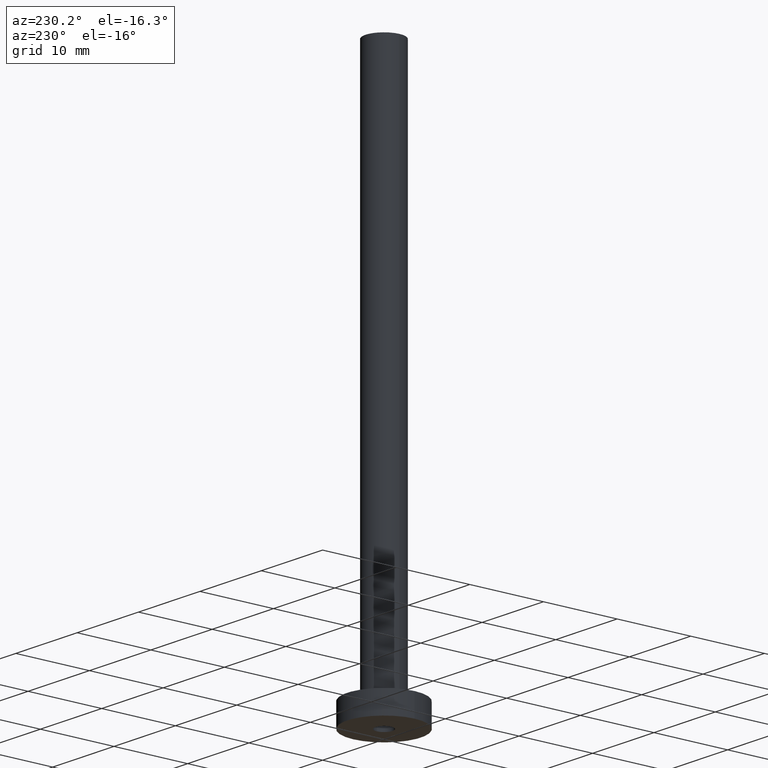
[diagram: clean part render]
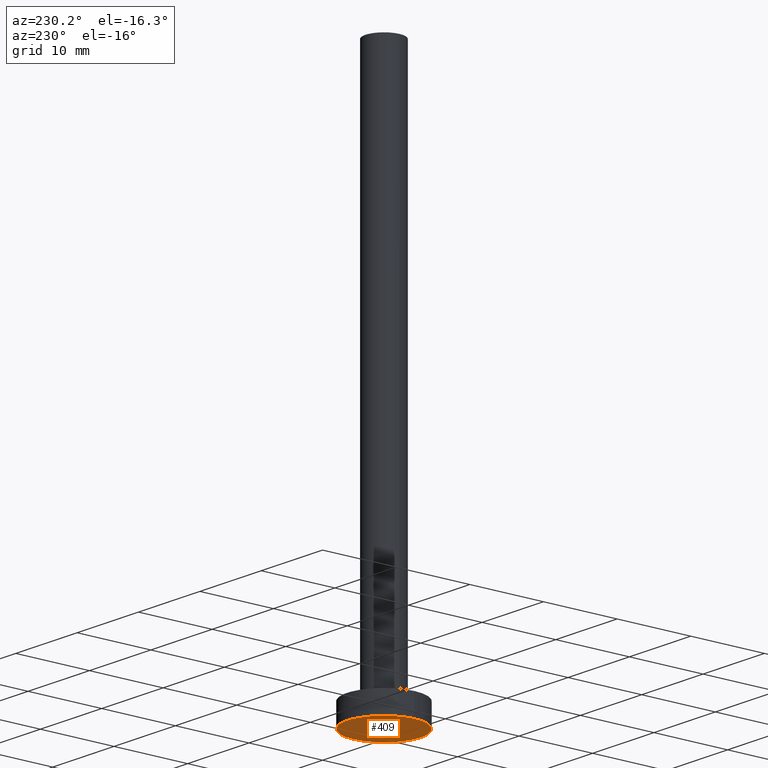
[diagram: same view with one face highlighted and labeled with its STEP entity id]
A machine part, auxiliary view. The second image highlights one B-rep face of the part: STEP entity #409.
In plain terms, the highlighted planar face has unit normal (0, 0, 1).
Its self-contained STEP definition (entity closure, byte-faithful):
#3 = CARTESIAN_POINT ( 'NONE',  ( 0.000000000000000000, 0.000000000000000000, 0.000000000000000000 ) ) ;
#4 = EDGE_CURVE ( 'NONE', #461, #181, #80, .T. ) ;
#10 = DIRECTION ( 'NONE',  ( -0.000000000000000000, -0.000000000000000000, -1.000000000000000000 ) ) ;
#23 = CIRCLE ( 'NONE', #417, 5.000000000000000000 ) ;
#28 = CARTESIAN_POINT ( 'NONE',  ( -1.149999999999999911, 0.000000000000000000, 0.000000000000000000 ) ) ;
#68 = EDGE_CURVE ( 'NONE', #213, #348, #147, .T. ) ;
#72 = AXIS2_PLACEMENT_3D ( 'NONE', #261, #10, #198 ) ;
#80 = CIRCLE ( 'NONE', #332, 5.000000000000000000 ) ;
#82 = ORIENTED_EDGE ( 'NONE', *, *, #431, .F. ) ;
#85 = CARTESIAN_POINT ( 'NONE',  ( -5.000000000000000000, 0.000000000000000000, 0.000000000000000000 ) ) ;
#93 = CARTESIAN_POINT ( 'NONE',  ( 0.000000000000000000, 0.000000000000000000, 0.000000000000000000 ) ) ;
#103 = DIRECTION ( 'NONE',  ( -0.000000000000000000, -0.000000000000000000, -1.000000000000000000 ) ) ;
#112 = ORIENTED_EDGE ( 'NONE', *, *, #341, .F. ) ;
#121 = DIRECTION ( 'NONE',  ( 1.000000000000000000, 0.000000000000000000, -0.000000000000000000 ) ) ;
#132 = CIRCLE ( 'NONE', #72, 1.149999999999999911 ) ;
#141 = CARTESIAN_POINT ( 'NONE',  ( 0.000000000000000000, 0.000000000000000000, 0.000000000000000000 ) ) ;
#147 = CIRCLE ( 'NONE', #299, 1.149999999999999911 ) ;
#156 = CARTESIAN_POINT ( 'NONE',  ( 5.000000000000000000, 6.123233995736766282E-16, 0.000000000000000000 ) ) ;
#181 = VERTEX_POINT ( 'NONE', #156 ) ;
#198 = DIRECTION ( 'NONE',  ( 1.000000000000000000, 0.000000000000000000, 0.000000000000000000 ) ) ;
#213 = VERTEX_POINT ( 'NONE', #439 ) ;
#225 = FACE_OUTER_BOUND ( 'NONE', #315, .T. ) ;
#229 = FACE_BOUND ( 'NONE', #250, .T. ) ;
#230 = PLANE ( 'NONE',  #268 ) ;
#234 = DIRECTION ( 'NONE',  ( 1.000000000000000000, 0.000000000000000000, 0.000000000000000000 ) ) ;
#235 = DIRECTION ( 'NONE',  ( 0.000000000000000000, 0.000000000000000000, 1.000000000000000000 ) ) ;
#242 = DIRECTION ( 'NONE',  ( 1.000000000000000000, 0.000000000000000000, 0.000000000000000000 ) ) ;
#243 = ORIENTED_EDGE ( 'NONE', *, *, #4, .F. ) ;
#250 = EDGE_LOOP ( 'NONE', ( #82, #282 ) ) ;
#261 = CARTESIAN_POINT ( 'NONE',  ( 0.000000000000000000, 0.000000000000000000, 0.000000000000000000 ) ) ;
#268 = AXIS2_PLACEMENT_3D ( 'NONE', #438, #402, #121 ) ;
#282 = ORIENTED_EDGE ( 'NONE', *, *, #68, .F. ) ;
#299 = AXIS2_PLACEMENT_3D ( 'NONE', #3, #103, #242 ) ;
#315 = EDGE_LOOP ( 'NONE', ( #243, #112 ) ) ;
#332 = AXIS2_PLACEMENT_3D ( 'NONE', #141, #344, #424 ) ;
#341 = EDGE_CURVE ( 'NONE', #181, #461, #23, .T. ) ;
#344 = DIRECTION ( 'NONE',  ( 0.000000000000000000, 0.000000000000000000, 1.000000000000000000 ) ) ;
#348 = VERTEX_POINT ( 'NONE', #28 ) ;
#402 = DIRECTION ( 'NONE',  ( 0.000000000000000000, 0.000000000000000000, 1.000000000000000000 ) ) ;
#409 = ADVANCED_FACE ( 'NONE', ( #229, #225 ), #230, .F. ) ;
#417 = AXIS2_PLACEMENT_3D ( 'NONE', #93, #235, #234 ) ;
#424 = DIRECTION ( 'NONE',  ( 1.000000000000000000, 0.000000000000000000, 0.000000000000000000 ) ) ;
#431 = EDGE_CURVE ( 'NONE', #348, #213, #132, .T. ) ;
#438 = CARTESIAN_POINT ( 'NONE',  ( 0.000000000000000000, 0.000000000000000000, 0.000000000000000000 ) ) ;
#439 = CARTESIAN_POINT ( 'NONE',  ( 1.149999999999999911, 1.408343819019456028E-16, 0.000000000000000000 ) ) ;
#461 = VERTEX_POINT ( 'NONE', #85 ) ;